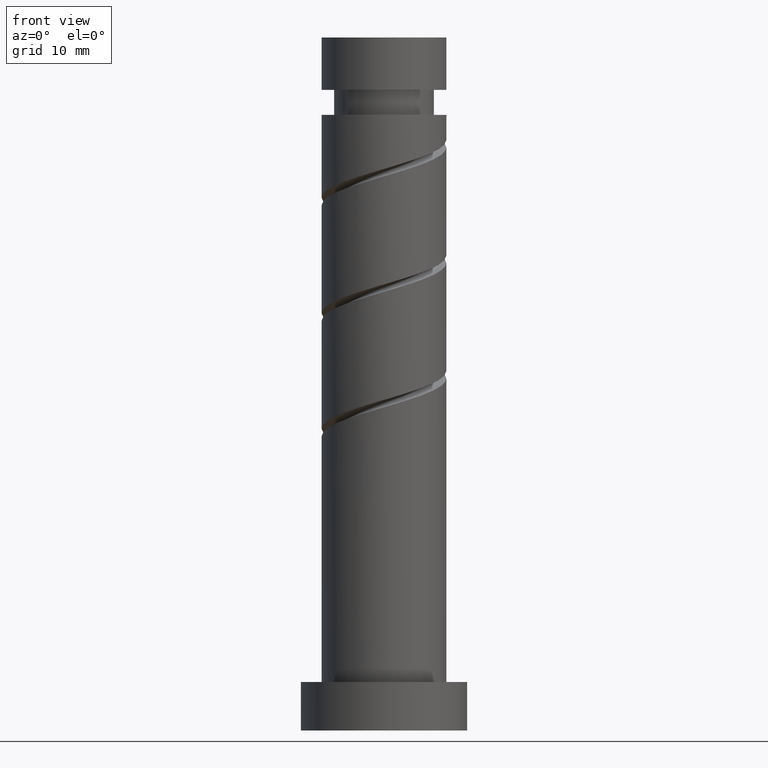
[diagram: clean part render]
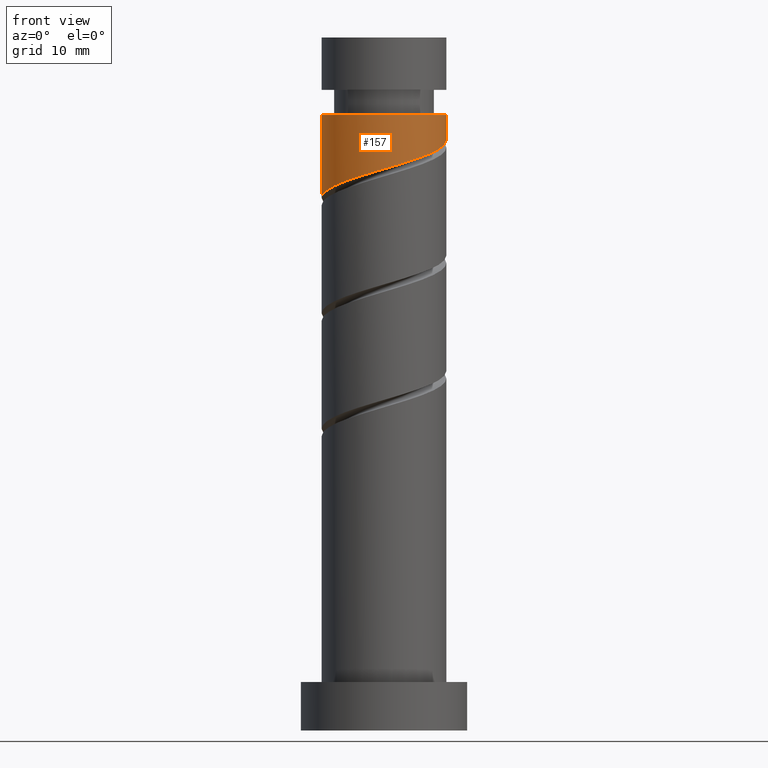
[diagram: same view with one face highlighted and labeled with its STEP entity id]
A machine part, front view. The second image highlights one B-rep face of the part: STEP entity #157.
In plain terms, the highlighted cylindrical surface (partial cylindrical patch) has radius 9 mm, axis along (-0, -0, -1).
Its self-contained STEP definition (entity closure, byte-faithful):
#5 = CARTESIAN_POINT ( 'NONE',  ( 9.000000000000001776, 1.102182119232617714E-15, 88.84664318135318695 ) ) ;
#30 = AXIS2_PLACEMENT_3D ( 'NONE', #592, #149, #39 ) ;
#39 = DIRECTION ( 'NONE',  ( -1.000000000000000000, 0.000000000000000000, 0.000000000000000000 ) ) ;
#69 = ORIENTED_EDGE ( 'NONE', *, *, #1089, .F. ) ;
#77 = CIRCLE ( 'NONE', #549, 9.000000000000001776 ) ;
#143 = CARTESIAN_POINT ( 'NONE',  ( -9.000000000000000000, -5.856074886382367139E-15, 76.87749806967526922 ) ) ;
#149 = DIRECTION ( 'NONE',  ( -0.000000000000000000, -0.000000000000000000, -1.000000000000000000 ) ) ;
#150 = EDGE_LOOP ( 'NONE', ( #1203, #1359, #443, #69 ) ) ;
#157 = ADVANCED_FACE ( 'NONE', ( #249 ), #709, .T. ) ;
#176 = DIRECTION ( 'NONE',  ( -1.000000000000000000, 0.000000000000000000, 0.000000000000000000 ) ) ;
#184 = CARTESIAN_POINT ( 'NONE',  ( 2.903072276482463909, -8.665480880580476608, 81.90219873690874408 ) ) ;
#249 = FACE_OUTER_BOUND ( 'NONE', #150, .T. ) ;
#265 = EDGE_CURVE ( 'NONE', #763, #977, #605, .T. ) ;
#278 = CARTESIAN_POINT ( 'NONE',  ( 8.997004341026773488, -0.2321914889599002163, 85.14293947764946324 ) ) ;
#284 = CARTESIAN_POINT ( 'NONE',  ( 5.691764608580694329, -7.149979242955538439, 82.82812466283466790 ) ) ;
#388 = CARTESIAN_POINT ( 'NONE',  ( 0.000000000000000000, 0.000000000000000000, 88.84664318135318695 ) ) ;
#394 = CARTESIAN_POINT ( 'NONE',  ( -3.346181356640579363, -8.504202364869842157, 80.05034688505688223 ) ) ;
#400 = CARTESIAN_POINT ( 'NONE',  ( 8.956062716832269288, -1.818606099834102041, 84.67997651468650133 ) ) ;
#443 = ORIENTED_EDGE ( 'NONE', *, *, #265, .T. ) ;
#527 = CARTESIAN_POINT ( 'NONE',  ( 4.297418442531580673, -7.907730061768005747, 82.36516169987173441 ) ) ;
#549 = AXIS2_PLACEMENT_3D ( 'NONE', #388, #852, #176 ) ;
#553 = CARTESIAN_POINT ( 'NONE',  ( 9.000000000000000000, 1.102182119232617517E-15, 100.0000000000000000 ) ) ;
#579 = DIRECTION ( 'NONE',  ( -0.000000000000000000, -0.000000000000000000, -1.000000000000000000 ) ) ;
#592 = CARTESIAN_POINT ( 'NONE',  ( 0.000000000000000000, 0.000000000000000000, 100.0000000000000000 ) ) ;
#605 = LINE ( 'NONE', #958, #1325 ) ;
#628 = CARTESIAN_POINT ( 'NONE',  ( 9.000000000000000000, 2.420112580596794696E-15, 85.21083140300861203 ) ) ;
#640 = CARTESIAN_POINT ( 'NONE',  ( -0.2357734169432577076, -9.135797635130156635, 80.97627281098282026 ) ) ;
#694 = LINE ( 'NONE', #553, #1464 ) ;
#709 = CYLINDRICAL_SURFACE ( 'NONE', #30, 9.000000000000000000 ) ;
#720 = DIRECTION ( 'NONE',  ( -0.000000000000000000, -0.000000000000000000, -1.000000000000000000 ) ) ;
#742 = CARTESIAN_POINT ( 'NONE',  ( -9.000000000000000000, -5.856074886382367139E-15, 76.87749806967526922 ) ) ;
#763 = VERTEX_POINT ( 'NONE', #895 ) ;
#826 = EDGE_CURVE ( 'NONE', #915, #1142, #694, .T. ) ;
#852 = DIRECTION ( 'NONE',  ( -0.000000000000000000, -0.000000000000000000, -1.000000000000000000 ) ) ;
#858 = CARTESIAN_POINT ( 'NONE',  ( -8.533832754774708818, -2.858968085434730799, 77.73553207024208689 ) ) ;
#864 = CARTESIAN_POINT ( 'NONE',  ( -7.041354992338972885, -5.605293914850765447, 78.66145799616799650 ) ) ;
#895 = CARTESIAN_POINT ( 'NONE',  ( -9.000000000000001776, 0.000000000000000000, 88.84664318135318695 ) ) ;
#915 = VERTEX_POINT ( 'NONE', #5 ) ;
#958 = CARTESIAN_POINT ( 'NONE',  ( -9.000000000000000000, 0.000000000000000000, 100.0000000000000000 ) ) ;
#977 = VERTEX_POINT ( 'NONE', #143 ) ;
#979 = CARTESIAN_POINT ( 'NONE',  ( 7.793946127384880462, -4.772084586175002308, 83.75405058876054909 ) ) ;
#993 = CARTESIAN_POINT ( 'NONE',  ( -4.699585898495192815, -7.675538572808108029, 79.58738392209390611 ) ) ;
#1001 = CARTESIAN_POINT ( 'NONE',  ( 9.000000000000000000, 2.420112580596794696E-15, 85.21083140300861203 ) ) ;
#1089 = EDGE_CURVE ( 'NONE', #1142, #977, #1121, .T. ) ;
#1091 = CARTESIAN_POINT ( 'NONE',  ( 6.742855367982787840, -5.961031914565269929, 83.29108762579764402 ) ) ;
#1095 = CARTESIAN_POINT ( 'NONE',  ( 8.375004422108577984, -3.295345343004548067, 84.21701355172356784 ) ) ;
#1100 = CARTESIAN_POINT ( 'NONE',  ( -1.790977386791916981, -8.820000000000000284, 80.51330984801987256 ) ) ;
#1105 = EDGE_CURVE ( 'NONE', #915, #763, #77, .T. ) ;
#1121 =( BOUNDED_CURVE ( )  B_SPLINE_CURVE ( 2, ( #628, #1211, #278, #400, #1095, #979, #1091, #284, #527, #184, #1435, #640, #1100, #394, #993, #1194, #864, #1324, #858, #1447, #742 ),
 .UNSPECIFIED., .F., .T. ) 
 B_SPLINE_CURVE_WITH_KNOTS ( ( 3, 2, 2, 2, 2, 2, 2, 2, 2, 2, 3 ),
 ( 0.3045248053855290626, 0.3055555555555555802, 0.3194444444444444198, 0.3333333333333333148, 0.3472222222222222099, 0.3611111111111111049, 0.3750000000000000000, 0.3888888888888888951, 0.4027777777777777901, 0.4166666666666666852, 0.4295248053855290626 ),
 .UNSPECIFIED. ) 
 CURVE ( )  GEOMETRIC_REPRESENTATION_ITEM ( )  RATIONAL_B_SPLINE_CURVE ( ( 0.9071930855141204786, 0.9080659294509680901, 0.9090909090909081725, 0.8952797754656427465, 0.9090909090909081725, 0.8952797754656427465, 0.9090909090909081725, 0.8952797754656427465, 0.9090909090909081725, 0.8952797754656427465, 0.9090909090909081725, 0.8952797754656427465, 0.9090909090909081725, 0.8952797754656427465, 0.9090909090909081725, 0.8952797754656427465, 0.9090909090909081725, 0.8952797754656427465, 0.9090909090909081725, 0.8963047551055828288, 0.9071930855141204786 ) ) 
 REPRESENTATION_ITEM ( '' )  );
#1142 = VERTEX_POINT ( 'NONE', #1001 ) ;
#1194 = CARTESIAN_POINT ( 'NONE',  ( -6.052990440349804047, -6.846874780746373013, 79.12442095913097262 ) ) ;
#1203 = ORIENTED_EDGE ( 'NONE', *, *, #826, .F. ) ;
#1211 = CARTESIAN_POINT ( 'NONE',  ( 9.000000000000001776, -0.1161150689881900594, 85.17681402907622612 ) ) ;
#1324 = CARTESIAN_POINT ( 'NONE',  ( -8.029719544328138170, -4.363713048955159657, 78.19849503320504880 ) ) ;
#1325 = VECTOR ( 'NONE', #720, 1000.000000000000000 ) ;
#1359 = ORIENTED_EDGE ( 'NONE', *, *, #1105, .T. ) ;
#1435 = CARTESIAN_POINT ( 'NONE',  ( 1.333649429769604877, -8.900639257855317510, 81.43923577394579638 ) ) ;
#1447 = CARTESIAN_POINT ( 'NONE',  ( -9.000000000000003553, -1.467489346384110327, 77.30741758204089820 ) ) ;
#1464 = VECTOR ( 'NONE', #579, 1000.000000000000000 ) ;